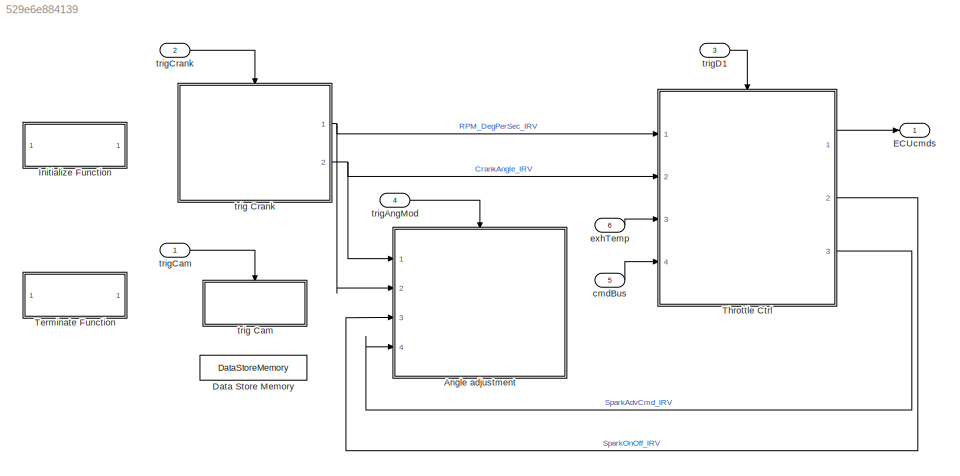
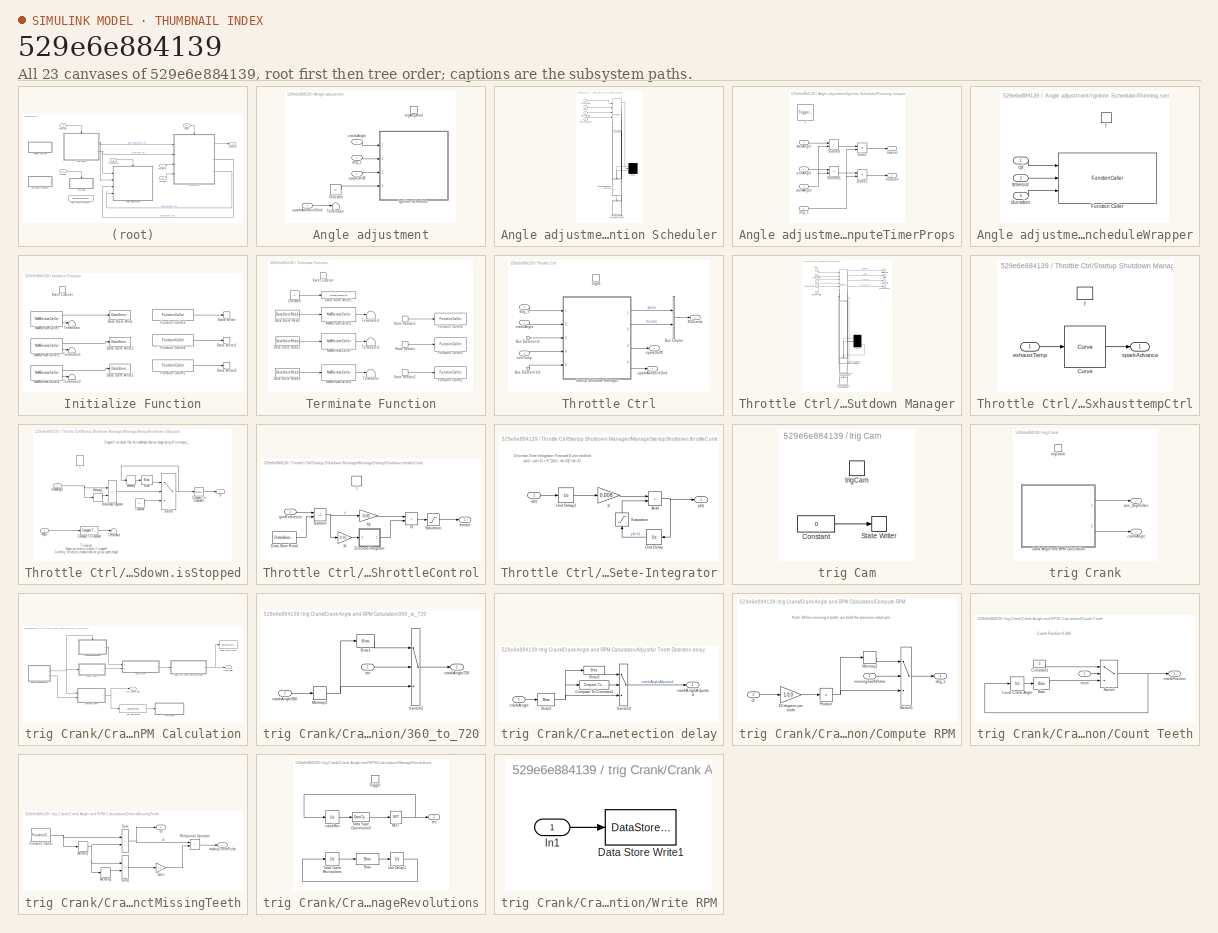
[diagram: thumbnail index - all 23 canvases of the model, root first then tree order]
MODEL slx_529e6e884139
KIND model
CONFIG AbsTol = auto
CONFIG EnableMultiTasking = on
CONFIG FixedStep = auto
CONFIG MaxStep = auto
CONFIG MinStep = auto
CONFIG PostLoadFcn = Variant = 2;
CONFIG RelTol = 1e-3
CONFIG SampleTimeConstraint = Unconstrained
CONFIG SolverName = FixedStepAuto
CONFIG StartTime = 0.0
CONFIG StopTime = 10.0
WORKSPACE source: mxarray member
WORKSPACE RPM: Simulink.Signal (value not decoded)
WORKSPACE cruiseRPM: Simulink.Parameter (value not decoded)
WORKSPACE enableCruiseControl: Simulink.Parameter (value not decoded)
WORKSPACE sparkAdvanceTable: Simulink.LookupTable (value not decoded)
BLOCK [SubSystem] Angle adjustment
  Ports = [4, 0, 0, 1]
  RequestExecContextInheritance = off
  TreatAsAtomicUnit = on
BLOCK [Constant] Angle adjustment/Constant
  Value = 30
BLOCK [SubSystem] Angle adjustment/Ignition Scheduler
  ErrorFcn = Stateflow.Translate.translate
  PermitHierarchicalResolution = ExplicitOnly
  Ports = [4]
  RequestExecContextInheritance = off
  SFBlockType = Chart
  TreatAsAtomicUnit = on
BLOCK [Demux] Angle adjustment/Ignition Scheduler/ Demux 
  Outputs = 2
  Ports = [1, 2]
BLOCK [S-Function] Angle adjustment/Ignition Scheduler/ SFunction 
  EnableBusSupport = on
  FunctionName = sf_sfun
  Parameters = CRANK_ANGLES,CRANK_ANGLE_MAX_IGN,dwellAngle
  PortCounts = [6 8]
  Ports = [6, 8]
  SFcnIsStateOwnerBlock = off
  SFunctionDeploymentMode = off
  Tag = Stateflow S-Function 2
BLOCK [SubSystem] Angle adjustment/Ignition Scheduler/Running.computeTimerProps
  Ports = [4, 2, 0, 1]
  PreDeleteFcn = Stateflow.SLINSF.SimulinkMan.removePreDeleteFcn
  RequestExecContextInheritance = off
  UndoDeleteFcn = Stateflow.SLINSF.SimulinkMan.restorePreDeleteFcn
BLOCK [Product] Angle adjustment/Ignition Scheduler/Running.computeTimerProps/Divide
  Inputs = */
  Ports = [2, 1]
BLOCK [Product] Angle adjustment/Ignition Scheduler/Running.computeTimerProps/Divide1
  Inputs = */
  Ports = [2, 1]
BLOCK [Sum] Angle adjustment/Ignition Scheduler/Running.computeTimerProps/Subtract
  IconShape = rectangular
  Inputs = +-
  Ports = [2, 1]
BLOCK [Sum] Angle adjustment/Ignition Scheduler/Running.computeTimerProps/Subtract1
  IconShape = rectangular
  Inputs = +-
  Ports = [2, 1]
BLOCK [Inport] Angle adjustment/Ignition Scheduler/Running.computeTimerProps/crankAngle
  OutDataTypeStr = double
  Port = 3
  PortDimensions = 1
  SignalType = real
  VarSizeSig = No
BLOCK [Inport] Angle adjustment/Ignition Scheduler/Running.computeTimerProps/deg_s
  OutDataTypeStr = double
  Port = 4
  PortDimensions = 1
  SignalType = real
  VarSizeSig = No
BLOCK [Outport] Angle adjustment/Ignition Scheduler/Running.computeTimerProps/duration
  Port = 2
  VectorParamsAs1DForOutWhenUnconnected = off
BLOCK [Inport] Angle adjustment/Ignition Scheduler/Running.computeTimerProps/endAngle
  OutDataTypeStr = double
  Port = 2
  PortDimensions = 1
  SignalType = real
  VarSizeSig = No
BLOCK [TriggerPort] Angle adjustment/Ignition Scheduler/Running.computeTimerProps/f
  CopyFcn = Stateflow.SLINSF.SimulinkMan.removeBlockPreDeleteFcn
  Ports = []
  PreDeleteFcn = Stateflow.SLINSF.SimulinkMan.unsafePredeleteFcn
  StatesWhenEnabling = held
  TriggerType = function-call
  VariantControl = (inherit)
BLOCK [Inport] Angle adjustment/Ignition Scheduler/Running.computeTimerProps/startAngle
  OutDataTypeStr = double
  PortDimensions = 1
  SignalType = real
  VarSizeSig = No
BLOCK [Outport] Angle adjustment/Ignition Scheduler/Running.computeTimerProps/timeout
  VectorParamsAs1DForOutWhenUnconnected = off
BLOCK [SubSystem] Angle adjustment/Ignition Scheduler/Running.setIgnitionScheduleWrapper
  Ports = [3, 0, 0, 1]
  PreDeleteFcn = Stateflow.SLINSF.SimulinkMan.removePreDeleteFcn
  RequestExecContextInheritance = off
  UndoDeleteFcn = Stateflow.SLINSF.SimulinkMan.restorePreDeleteFcn
BLOCK [FunctionCaller] Angle adjustment/Ignition Scheduler/Running.setIgnitionScheduleWrapper/Function Caller
  FunctionPrototype = setIgnitionSchedule(cyl,timeout,duration)
  InputArgumentSpecifications = 1,1,1
  OutputArgumentSpecifications = <Enter example>
  Ports = [3]
BLOCK [Inport] Angle adjustment/Ignition Scheduler/Running.setIgnitionScheduleWrapper/cyl
  OutDataTypeStr = double
  PortDimensions = 1
  SignalType = real
  VarSizeSig = No
BLOCK [Inport] Angle adjustment/Ignition Scheduler/Running.setIgnitionScheduleWrapper/duration
  OutDataTypeStr = double
  Port = 3
  PortDimensions = 1
  SignalType = real
  VarSizeSig = No
BLOCK [TriggerPort] Angle adjustment/Ignition Scheduler/Running.setIgnitionScheduleWrapper/f
  CopyFcn = Stateflow.SLINSF.SimulinkMan.removeBlockPreDeleteFcn
  Ports = []
  PreDeleteFcn = Stateflow.SLINSF.SimulinkMan.unsafePredeleteFcn
  StatesWhenEnabling = held
  TriggerType = function-call
  VariantControl = (inherit)
BLOCK [Inport] Angle adjustment/Ignition Scheduler/Running.setIgnitionScheduleWrapper/timeout
  OutDataTypeStr = double
  Port = 2
  PortDimensions = 1
  SignalType = real
  VarSizeSig = No
BLOCK [Inport] Angle adjustment/Ignition Scheduler/crankAngle
BLOCK [Inport] Angle adjustment/Ignition Scheduler/deg_s
  Port = 2
BLOCK [Inport] Angle adjustment/Ignition Scheduler/sparkAdvance
  Port = 4
BLOCK [Inport] Angle adjustment/Ignition Scheduler/sparkOnOff
  Port = 3
BLOCK [Terminator] Angle adjustment/Terminator
BLOCK [Inport] Angle adjustment/crankAngle
BLOCK [Inport] Angle adjustment/deg_s
  Port = 2
BLOCK [Inport] Angle adjustment/sparkAdvanceCmd
  Port = 4
BLOCK [Inport] Angle adjustment/sparkOnOff
  Port = 3
BLOCK [TriggerPort] Angle adjustment/trigAngMod
  FunctionName = scheduleIgnition
  FunctionVisibility = scoped
  Ports = []
  StatesWhenEnabling = held
  TriggerType = function-call
  VariantControl = (inherit)
BLOCK [DataStoreMemory] Data Store Memory
  DataLogging = on
  DataStoreName = RPM
  ReadBeforeWriteMsg = warning
  ShowAdditionalParam = off
  WriteAfterReadMsg = warning
  WriteAfterWriteMsg = warning
BLOCK [Outport] ECUcmds
  BusOutputAsStruct = on
  OutDataTypeStr = Bus: ecuCmdBus
  VectorParamsAs1DForOutWhenUnconnected = off
BLOCK [SubSystem] Initialize Function
  Ports = []
  RequestExecContextInheritance = off
  TreatAsAtomicUnit = on
BLOCK [DataStoreWrite] Initialize Function/Data Store Write
  Commented = on
  DataStoreName = crankRev
  Ports = [1]
BLOCK [DataStoreWrite] Initialize Function/Data Store Write1
  Commented = on
  DataStoreName = totalCrankRevs
  Ports = [1]
BLOCK [DataStoreWrite] Initialize Function/Data Store Write2
  Commented = on
  DataStoreName = LocalCrankAngle
  Ports = [1]
BLOCK [EventListener] Initialize Function/Event Listener
  DisableCoverage = on
  EventName = reset
BLOCK [FunctionCaller] Initialize Function/Function Caller1
  FunctionPrototype = y = readCrankAngle()
  InputArgumentSpecifications = <Enter example>
  OutputArgumentSpecifications = 0
  Ports = [0, 1]
BLOCK [FunctionCaller] Initialize Function/Function Caller3
  FunctionPrototype = y = readCrankRev()
  InputArgumentSpecifications = <Enter example>
  OutputArgumentSpecifications = false
  Ports = [0, 1]
BLOCK [FunctionCaller] Initialize Function/Function Caller4
  FunctionPrototype = y = readTotalRevs()
  InputArgumentSpecifications = <Enter example>
  OutputArgumentSpecifications = 0
  Ports = [0, 1]
BLOCK [Reference] Initialize Function/NvMServiceCaller  REF=autosarlibnvm/NvMServiceCaller
  Commented = on
  Ports = [0, 2]
  SourceBlock = autosarlibnvm/NvMServiceCaller
  SourceProductBaseCode = AS
  SourceType = NvMServiceCaller
BLOCK [Reference] Initialize Function/NvMServiceCaller1  REF=autosarlibnvm/NvMServiceCaller
  Commented = on
  Ports = [0, 2]
  SourceBlock = autosarlibnvm/NvMServiceCaller
  SourceProductBaseCode = AS
  SourceType = NvMServiceCaller
BLOCK [Reference] Initialize Function/NvMServiceCaller2  REF=autosarlibnvm/NvMServiceCaller
  Commented = on
  Ports = [0, 2]
  SourceBlock = autosarlibnvm/NvMServiceCaller
  SourceProductBaseCode = AS
  SourceType = NvMServiceCaller
BLOCK [StateWriter] Initialize Function/State Writer
  StateName = crankRev
  StateOwnerBlock = ../../trig Crank/Crank Angle and RPM Calculation/ManageRevolutions/crankRev
BLOCK [StateWriter] Initialize Function/State Writer1
  StateName = totalCrankRevs
  StateOwnerBlock = ../../trig Crank/Crank Angle and RPM Calculation/ManageRevolutions/Total Crank Revolutions
BLOCK [StateWriter] Initialize Function/State Writer2
  StateOwnerBlock = ../../trig Crank/Crank Angle and RPM Calculation/Count Teeth/Local Crank Angle
BLOCK [Terminator] Initialize Function/Terminator
  Commented = on
BLOCK [Terminator] Initialize Function/Terminator1
  Commented = on
BLOCK [Terminator] Initialize Function/Terminator2
  Commented = on
BLOCK [SubSystem] Terminate Function
  Ports = []
  RequestExecContextInheritance = off
  TreatAsAtomicUnit = on
BLOCK [Constant] Terminate Function/Constant
  Value = 0
BLOCK [DataStoreRead] Terminate Function/Data Store Read
  Commented = on
  DataStoreName = crankRev
  Ports = [0, 1]
BLOCK [DataStoreRead] Terminate Function/Data Store Read1
  Commented = on
  DataStoreName = totalCrankRevs
  Ports = [0, 1]
BLOCK [DataStoreRead] Terminate Function/Data Store Read2
  Commented = on
  DataStoreName = LocalCrankAngle
  Ports = [0, 1]
BLOCK [DataStoreWrite] Terminate Function/Data Store Write1
  DataStoreName = RPM
  Ports = [1]
BLOCK [EventListener] Terminate Function/Event Listener
  DisableCoverage = on
  EventName = reset
  EventType = Terminate
BLOCK [FunctionCaller] Terminate Function/Function Caller1
  FunctionPrototype = writeTotalRevs(u)
  InputArgumentSpecifications = 0
  OutputArgumentSpecifications = <Enter example>
  Ports = [1]
BLOCK [FunctionCaller] Terminate Function/Function Caller2
  FunctionPrototype = writeCrankAngle(u)
  InputArgumentSpecifications = 0
  OutputArgumentSpecifications = <Enter example>
  Ports = [1]
BLOCK [FunctionCaller] Terminate Function/Function Caller4
  FunctionPrototype = writeCrankRev(u)
  InputArgumentSpecifications = false
  OutputArgumentSpecifications = <Enter example>
  Ports = [1]
BLOCK [Reference] Terminate Function/NvMServiceCaller  REF=autosarlibnvm/NvMServiceCaller
  Commented = on
  Ports = [1, 1]
  SourceBlock = autosarlibnvm/NvMServiceCaller
  SourceProductBaseCode = AS
  SourceType = NvMServiceCaller
BLOCK [Reference] Terminate Function/NvMServiceCaller1  REF=autosarlibnvm/NvMServiceCaller
  Commented = on
  Ports = [1, 1]
  SourceBlock = autosarlibnvm/NvMServiceCaller
  SourceProductBaseCode = AS
  SourceType = NvMServiceCaller
BLOCK [Reference] Terminate Function/NvMServiceCaller2  REF=autosarlibnvm/NvMServiceCaller
  Commented = on
  Ports = [1, 1]
  SourceBlock = autosarlibnvm/NvMServiceCaller
  SourceProductBaseCode = AS
  SourceType = NvMServiceCaller
BLOCK [StateReader] Terminate Function/State Reader
  StateName = totalCrankRevs
  StateOwnerBlock = ../../trig Crank/Crank Angle and RPM Calculation/ManageRevolutions/Total Crank Revolutions
BLOCK [StateReader] Terminate Function/State Reader1
  StateName = crankRev
  StateOwnerBlock = ../../trig Crank/Crank Angle and RPM Calculation/ManageRevolutions/crankRev
BLOCK [StateReader] Terminate Function/State Reader2
  StateOwnerBlock = ../../trig Crank/Crank Angle and RPM Calculation/Count Teeth/Local Crank Angle
BLOCK [Terminator] Terminate Function/Terminator
  Commented = on
BLOCK [Terminator] Terminate Function/Terminator1
  Commented = on
BLOCK [Terminator] Terminate Function/Terminator2
  Commented = on
BLOCK [SubSystem] Throttle Ctrl
  Ports = [4, 3, 0, 1]
  RequestExecContextInheritance = off
  TreatAsAtomicUnit = on
BLOCK [BusCreator] Throttle Ctrl/Bus Creator
  DisplayOption = bar
  InheritFromInputs = on
  Inputs = 2
  NonVirtualBus = on
  OutDataTypeStr = Bus: ecuCmdBus
  Ports = [2, 1]
BLOCK [Inport] Throttle Ctrl/Bus Element In
  Port = 4
BLOCK [Inport] Throttle Ctrl/Bus Element In1
  Port = 4
BLOCK [Outport] Throttle Ctrl/ECUcmds
  VectorParamsAs1DForOutWhenUnconnected = off
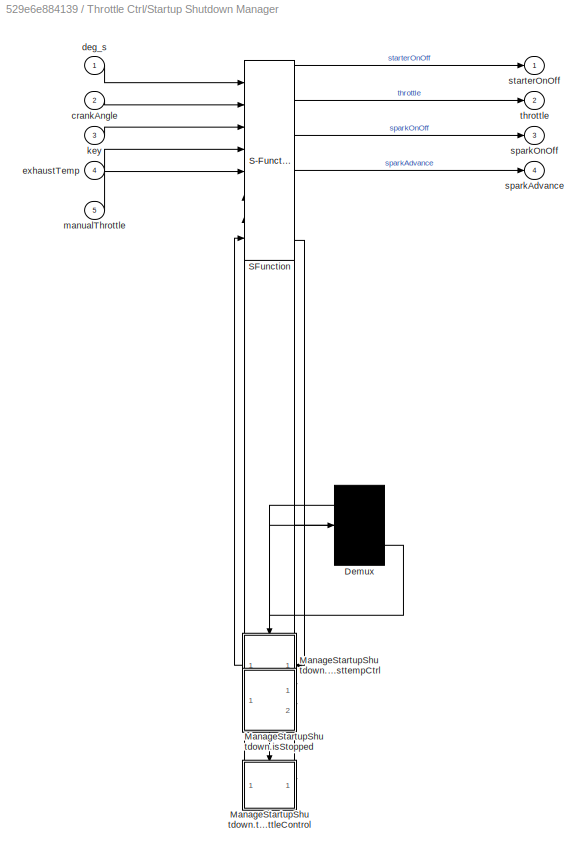
BLOCK [SubSystem] Throttle Ctrl/Startup Shutdown Manager
  ErrorFcn = Stateflow.Translate.translate
  PermitHierarchicalResolution = ExplicitOnly
  Ports = [5, 4]
  RequestExecContextInheritance = off
  SFBlockType = Chart
  TreatAsAtomicUnit = on
BLOCK [Demux] Throttle Ctrl/Startup Shutdown Manager/ Demux 
  Outputs = 3
  Ports = [1, 3]
BLOCK [S-Function] Throttle Ctrl/Startup Shutdown Manager/ SFunction 
  EnableBusSupport = on
  FunctionName = sf_sfun
  Parameters = CRANK_ANGLES,cruiseRPM,dwellAngle,enableCruiseControl,idleRPM
  PortCounts = [8 9]
  Ports = [8, 9]
  SFcnIsStateOwnerBlock = off
  SFunctionDeploymentMode = off
  Tag = Stateflow S-Function 1
BLOCK [SubSystem] Throttle Ctrl/Startup Shutdown Manager/ManageStartupShutdown.exhausttempCtrl
  Ports = [1, 1, 0, 1]
  PreDeleteFcn = Stateflow.SLINSF.SimulinkMan.removePreDeleteFcn
  RequestExecContextInheritance = off
  UndoDeleteFcn = Stateflow.SLINSF.SimulinkMan.restorePreDeleteFcn
BLOCK [Reference] Throttle Ctrl/Startup Shutdown Manager/ManageStartupShutdown.exhausttempCtrl/Curve  REF=autosarlibiflifx/Curve
  AttributesFormatString = %<TargetedRoutine>
  Ports = [1, 1]
  SourceBlock = autosarlibiflifx/Curve
  SourceProductBaseCode = AS
  SourceType = Curve
BLOCK [Inport] Throttle Ctrl/Startup Shutdown Manager/ManageStartupShutdown.exhausttempCtrl/exhaustTemp
  OutDataTypeStr = single
  PortDimensions = 1
  SignalType = real
  VarSizeSig = No
BLOCK [TriggerPort] Throttle Ctrl/Startup Shutdown Manager/ManageStartupShutdown.exhausttempCtrl/f
  CopyFcn = Stateflow.SLINSF.SimulinkMan.removeBlockPreDeleteFcn
  Ports = []
  PreDeleteFcn = Stateflow.SLINSF.SimulinkMan.unsafePredeleteFcn
  StatesWhenEnabling = held
  TriggerType = function-call
  VariantControl = (inherit)
BLOCK [Outport] Throttle Ctrl/Startup Shutdown Manager/ManageStartupShutdown.exhausttempCtrl/sparkAdvance
  VectorParamsAs1DForOutWhenUnconnected = off
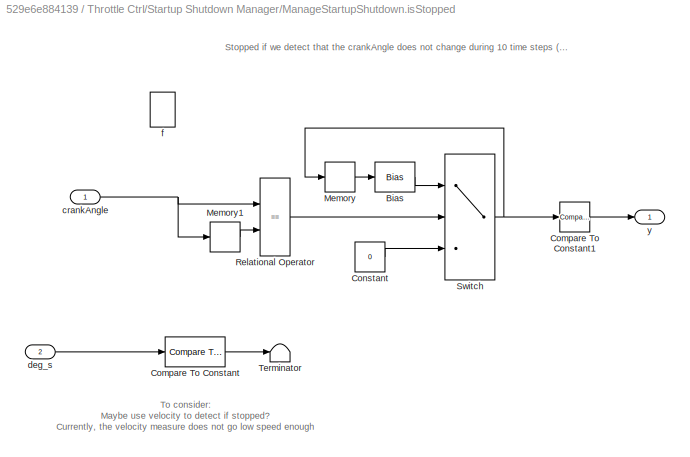
BLOCK [SubSystem] Throttle Ctrl/Startup Shutdown Manager/ManageStartupShutdown.isStopped
  Ports = [2, 1, 0, 1]
  PreDeleteFcn = Stateflow.SLINSF.SimulinkMan.removePreDeleteFcn
  RequestExecContextInheritance = off
  UndoDeleteFcn = Stateflow.SLINSF.SimulinkMan.restorePreDeleteFcn
BLOCK [Bias] Throttle Ctrl/Startup Shutdown Manager/ManageStartupShutdown.isStopped/Bias
  Bias = 1
  SaturateOnIntegerOverflow = off
BLOCK [Reference] Throttle Ctrl/Startup Shutdown Manager/ManageStartupShutdown.isStopped/Compare To Constant  REF=simulink/Logic and Bit
Operations/Compare
To Constant
  Ports = [1, 1]
  SourceBlock = simulink/Logic and Bit\nOperations/Compare\nTo Constant
  SourceProductBaseCode = SL
  SourceType = Compare To Constant
BLOCK [Reference] Throttle Ctrl/Startup Shutdown Manager/ManageStartupShutdown.isStopped/Compare To Constant1  REF=simulink/Logic and Bit
Operations/Compare
To Constant
  Ports = [1, 1]
  SourceBlock = simulink/Logic and Bit\nOperations/Compare\nTo Constant
  SourceProductBaseCode = SL
  SourceType = Compare To Constant
BLOCK [Constant] Throttle Ctrl/Startup Shutdown Manager/ManageStartupShutdown.isStopped/Constant
  Value = 0
BLOCK [Memory] Throttle Ctrl/Startup Shutdown Manager/ManageStartupShutdown.isStopped/Memory
  InheritSampleTime = on
BLOCK [Memory] Throttle Ctrl/Startup Shutdown Manager/ManageStartupShutdown.isStopped/Memory1
  InheritSampleTime = on
BLOCK [RelationalOperator] Throttle Ctrl/Startup Shutdown Manager/ManageStartupShutdown.isStopped/Relational Operator
  InputSameDT = off
  Operator = ==
  OutDataTypeStr = boolean
  Ports = [2, 1]
  RndMeth = Simplest
BLOCK [Switch] Throttle Ctrl/Startup Shutdown Manager/ManageStartupShutdown.isStopped/Switch
  Criteria = u2 ~= 0
  InputSameDT = off
  SaturateOnIntegerOverflow = off
BLOCK [Terminator] Throttle Ctrl/Startup Shutdown Manager/ManageStartupShutdown.isStopped/Terminator
BLOCK [Inport] Throttle Ctrl/Startup Shutdown Manager/ManageStartupShutdown.isStopped/crankAngle
  OutDataTypeStr = double
  PortDimensions = 1
  SignalType = real
  VarSizeSig = No
BLOCK [Inport] Throttle Ctrl/Startup Shutdown Manager/ManageStartupShutdown.isStopped/deg_s
  OutDataTypeStr = double
  Port = 2
  PortDimensions = 1
  SignalType = real
  VarSizeSig = No
BLOCK [TriggerPort] Throttle Ctrl/Startup Shutdown Manager/ManageStartupShutdown.isStopped/f
  CopyFcn = Stateflow.SLINSF.SimulinkMan.removeBlockPreDeleteFcn
  Ports = []
  PreDeleteFcn = Stateflow.SLINSF.SimulinkMan.unsafePredeleteFcn
  StatesWhenEnabling = held
  TriggerType = function-call
  VariantControl = (inherit)
BLOCK [Outport] Throttle Ctrl/Startup Shutdown Manager/ManageStartupShutdown.isStopped/y
  OutDataTypeStr = boolean
  PortDimensions = 1
  VarSizeSig = No
  VectorParamsAs1DForOutWhenUnconnected = off
BLOCK [SubSystem] Throttle Ctrl/Startup Shutdown Manager/ManageStartupShutdown.throttleControl
  Ports = [1, 1, 0, 1]
  PreDeleteFcn = Stateflow.SLINSF.SimulinkMan.removePreDeleteFcn
  RequestExecContextInheritance = off
  UndoDeleteFcn = Stateflow.SLINSF.SimulinkMan.restorePreDeleteFcn
BLOCK [DataStoreRead] Throttle Ctrl/Startup Shutdown Manager/ManageStartupShutdown.throttleControl/Data Store Read
  DataStoreName = RPM
  Ports = [0, 1]
BLOCK [SubSystem] Throttle Ctrl/Startup Shutdown Manager/ManageStartupShutdown.throttleControl/Discrete-Integrator
  Ports = [1, 1]
  RequestExecContextInheritance = off
BLOCK [Sum] Throttle Ctrl/Startup Shutdown Manager/ManageStartupShutdown.throttleControl/Discrete-Integrator/Add
  IconShape = rectangular
  Ports = [2, 1]
BLOCK [Gain] Throttle Ctrl/Startup Shutdown Manager/ManageStartupShutdown.throttleControl/Discrete-Integrator/K
  Gain = 0.008
BLOCK [Saturate] Throttle Ctrl/Startup Shutdown Manager/ManageStartupShutdown.throttleControl/Discrete-Integrator/Saturation
  LowerLimit = 0
  NameLocation = right
  UpperLimit = 90
BLOCK [UnitDelay] Throttle Ctrl/Startup Shutdown Manager/ManageStartupShutdown.throttleControl/Discrete-Integrator/Unit Delay
  HasFrameUpgradeWarning = on
  NameLocation = top
  SampleTime = -1
BLOCK [UnitDelay] Throttle Ctrl/Startup Shutdown Manager/ManageStartupShutdown.throttleControl/Discrete-Integrator/Unit Delay1
  HasFrameUpgradeWarning = on
  SampleTime = -1
BLOCK [Inport] Throttle Ctrl/Startup Shutdown Manager/ManageStartupShutdown.throttleControl/Discrete-Integrator/u(n)
BLOCK [Outport] Throttle Ctrl/Startup Shutdown Manager/ManageStartupShutdown.throttleControl/Discrete-Integrator/y(n)
  VectorParamsAs1DForOutWhenUnconnected = off
BLOCK [Gain] Throttle Ctrl/Startup Shutdown Manager/ManageStartupShutdown.throttleControl/Ki
  Gain = 0.05
BLOCK [Gain] Throttle Ctrl/Startup Shutdown Manager/ManageStartupShutdown.throttleControl/Kp
  Gain = 0.03
BLOCK [Sum] Throttle Ctrl/Startup Shutdown Manager/ManageStartupShutdown.throttleControl/PI
  IconShape = rectangular
  Ports = [2, 1]
BLOCK [Saturate] Throttle Ctrl/Startup Shutdown Manager/ManageStartupShutdown.throttleControl/Saturation
  LowerLimit = 0
  UpperLimit = 90
BLOCK [Sum] Throttle Ctrl/Startup Shutdown Manager/ManageStartupShutdown.throttleControl/Subtract
  IconShape = rectangular
  Inputs = +-
  Ports = [2, 1]
BLOCK [TriggerPort] Throttle Ctrl/Startup Shutdown Manager/ManageStartupShutdown.throttleControl/f
  CopyFcn = Stateflow.SLINSF.SimulinkMan.removeBlockPreDeleteFcn
  Ports = []
  PreDeleteFcn = Stateflow.SLINSF.SimulinkMan.unsafePredeleteFcn
  StatesWhenEnabling = held
  TriggerType = function-call
  VariantControl = (inherit)
BLOCK [Inport] Throttle Ctrl/Startup Shutdown Manager/ManageStartupShutdown.throttleControl/rpmReference
  OutDataTypeStr = double
  PortDimensions = 1
  SignalType = real
  VarSizeSig = No
BLOCK [Outport] Throttle Ctrl/Startup Shutdown Manager/ManageStartupShutdown.throttleControl/throttle
  VectorParamsAs1DForOutWhenUnconnected = off
BLOCK [Inport] Throttle Ctrl/Startup Shutdown Manager/crankAngle
  Port = 2
BLOCK [Inport] Throttle Ctrl/Startup Shutdown Manager/deg_s
BLOCK [Inport] Throttle Ctrl/Startup Shutdown Manager/exhaustTemp
  Port = 4
BLOCK [Inport] Throttle Ctrl/Startup Shutdown Manager/key
  Port = 3
BLOCK [Inport] Throttle Ctrl/Startup Shutdown Manager/manualThrottle
  Port = 5
BLOCK [Outport] Throttle Ctrl/Startup Shutdown Manager/sparkAdvance
  Port = 4
  VectorParamsAs1DForOutWhenUnconnected = off
BLOCK [Outport] Throttle Ctrl/Startup Shutdown Manager/sparkOnOff
  Port = 3
  VectorParamsAs1DForOutWhenUnconnected = off
BLOCK [Outport] Throttle Ctrl/Startup Shutdown Manager/starterOnOff
  VectorParamsAs1DForOutWhenUnconnected = off
BLOCK [Outport] Throttle Ctrl/Startup Shutdown Manager/throttle
  Port = 2
  VectorParamsAs1DForOutWhenUnconnected = off
BLOCK [Inport] Throttle Ctrl/crankAngle
  Port = 2
BLOCK [Inport] Throttle Ctrl/deg_s
BLOCK [Inport] Throttle Ctrl/exhTemp
  Port = 3
BLOCK [Outport] Throttle Ctrl/sparkAdvanceCmd
  Port = 3
  VectorParamsAs1DForOutWhenUnconnected = off
BLOCK [Outport] Throttle Ctrl/sparkOnOff
  Port = 2
  VectorParamsAs1DForOutWhenUnconnected = off
BLOCK [TriggerPort] Throttle Ctrl/trigD1
  FunctionName = scheduleIgnition
  FunctionVisibility = scoped
  Ports = []
  SampleTime = 0.008
  SampleTimeType = periodic
  StatesWhenEnabling = held
  TriggerType = function-call
  VariantControl = (inherit)
BLOCK [Inport] cmdBus
  BusOutputAsStruct = on
  OutDataTypeStr = Bus: opCmdBus
  Port = 5
BLOCK [Inport] exhTemp
  OutDataTypeStr = single
  Port = 6
BLOCK [SubSystem] trig Cam
  Ports = [0, 0, 0, 1]
  RequestExecContextInheritance = off
  TreatAsAtomicUnit = on
BLOCK [Constant] trig Cam/Constant
  OutDataTypeStr = boolean
  Value = 0
BLOCK [StateWriter] trig Cam/State Writer
  StateName = crankRev
  StateOwnerBlock = ../../trig Crank/Crank Angle and RPM Calculation/ManageRevolutions/crankRev
BLOCK [TriggerPort] trig Cam/trigCam
  FunctionName = trigCam
  FunctionVisibility = scoped
  Ports = []
  StatesWhenEnabling = held
  TriggerType = function-call
  VariantControl = (inherit)
BLOCK [SubSystem] trig Crank
  Ports = [0, 2, 0, 1]
  RequestExecContextInheritance = off
  TreatAsAtomicUnit = on
BLOCK [SubSystem] trig Crank/Crank Angle and RPM Calculation
  Ports = [0, 2]
  RequestExecContextInheritance = off
BLOCK [SubSystem] trig Crank/Crank Angle and RPM Calculation/360_to_720
  Ports = [2, 1]
  RequestExecContextInheritance = off
BLOCK [Bias] trig Crank/Crank Angle and RPM Calculation/360_to_720/Bias1
  Bias = 360
  SaturateOnIntegerOverflow = off
BLOCK [Memory] trig Crank/Crank Angle and RPM Calculation/360_to_720/Memory3
  Commented = through
  InheritSampleTime = on
  StateName = CrankAngle360
BLOCK [Switch] trig Crank/Crank Angle and RPM Calculation/360_to_720/Switch2
  Criteria = u2 ~= 0
  InputSameDT = off
  SaturateOnIntegerOverflow = off
  Threshold = 34
BLOCK [Inport] trig Crank/Crank Angle and RPM Calculation/360_to_720/crankAngle360
  Port = 2
BLOCK [Outport] trig Crank/Crank Angle and RPM Calculation/360_to_720/crankAngle720
  VectorParamsAs1DForOutWhenUnconnected = off
BLOCK [Inport] trig Crank/Crank Angle and RPM Calculation/360_to_720/rev
BLOCK [SubSystem] trig Crank/Crank Angle and RPM Calculation/Adjust for Teeth Detection delay
  Ports = [1, 1]
  RequestExecContextInheritance = off
BLOCK [Bias] trig Crank/Crank Angle and RPM Calculation/Adjust for Teeth Detection delay/Bias2
  Bias = 10
  Commented = through
  SaturateOnIntegerOverflow = off
BLOCK [Bias] trig Crank/Crank Angle and RPM Calculation/Adjust for Teeth Detection delay/Bias3
  Bias = -710
  NameLocation = top
  SaturateOnIntegerOverflow = off
BLOCK [Reference] trig Crank/Crank Angle and RPM Calculation/Adjust for Teeth Detection delay/Compare To Constant1  REF=simulink/Logic and Bit
Operations/Compare
To Constant
  Ports = [1, 1]
  SourceBlock = simulink/Logic and Bit\nOperations/Compare\nTo Constant
  SourceProductBaseCode = SL
  SourceType = Compare To Constant
BLOCK [Switch] trig Crank/Crank Angle and RPM Calculation/Adjust for Teeth Detection delay/Switch3
  Criteria = u2 ~= 0
  InputSameDT = off
  SaturateOnIntegerOverflow = off
  Threshold = 34
BLOCK [Inport] trig Crank/Crank Angle and RPM Calculation/Adjust for Teeth Detection delay/crankAngle
BLOCK [Outport] trig Crank/Crank Angle and RPM Calculation/Adjust for Teeth Detection delay/crankAngleAdjusted
  VectorParamsAs1DForOutWhenUnconnected = off
BLOCK [SubSystem] trig Crank/Crank Angle and RPM Calculation/Compute RPM
  Ports = [2, 1]
  RequestExecContextInheritance = off
BLOCK [Gain] trig Crank/Crank Angle and RPM Calculation/Compute RPM/10 degrees per tooth
  Gain = 1/10
BLOCK [Memory] trig Crank/Crank Angle and RPM Calculation/Compute RPM/Memory2
  InheritSampleTime = on
  StateName = DegPerSec
BLOCK [Product] trig Crank/Crank Angle and RPM Calculation/Compute RPM/Product
  Inputs = /
  Ports = [1, 1]
BLOCK [Switch] trig Crank/Crank Angle and RPM Calculation/Compute RPM/Switch1
  Criteria = u2 ~= 0
  InputSameDT = off
  SaturateOnIntegerOverflow = off
  Threshold = 34
BLOCK [Outport] trig Crank/Crank Angle and RPM Calculation/Compute RPM/deg_s
  Unit = deg/sec
  VectorParamsAs1DForOutWhenUnconnected = off
BLOCK [Inport] trig Crank/Crank Angle and RPM Calculation/Compute RPM/dt
  Port = 2
  Unit = sec
BLOCK [Inport] trig Crank/Crank Angle and RPM Calculation/Compute RPM/missingTeethPulse
BLOCK [SubSystem] trig Crank/Crank Angle and RPM Calculation/Count Teeth
  Ports = [1, 1]
  RequestExecContextInheritance = off
BLOCK [Bias] trig Crank/Crank Angle and RPM Calculation/Count Teeth/Bias
  Bias = 10
  SaturateOnIntegerOverflow = off
BLOCK [Constant] trig Crank/Crank Angle and RPM Calculation/Count Teeth/Constant1
  Value = 0
BLOCK [UnitDelay] trig Crank/Crank Angle and RPM Calculation/Count Teeth/Local Crank Angle
  HasFrameUpgradeWarning = on
  SampleTime = -1
BLOCK [Switch] trig Crank/Crank Angle and RPM Calculation/Count Teeth/Switch
  Criteria = u2 ~= 0
  InputSameDT = off
  SaturateOnIntegerOverflow = off
  Threshold = 34
BLOCK [Outport] trig Crank/Crank Angle and RPM Calculation/Count Teeth/crankPosition
  Unit = deg
  VectorParamsAs1DForOutWhenUnconnected = off
BLOCK [Inport] trig Crank/Crank Angle and RPM Calculation/Count Teeth/reset
BLOCK [DataStoreWrite] trig Crank/Crank Angle and RPM Calculation/Data Store Write
  DataStoreName = fullCrankAngle
  Ports = [1]
BLOCK [SubSystem] trig Crank/Crank Angle and RPM Calculation/DetectMissingTeeth
  Ports = [0, 2]
  RequestExecContextInheritance = off
BLOCK [FunctionCaller] trig Crank/Crank Angle and RPM Calculation/DetectMissingTeeth/Function Caller
  FunctionPrototype = y = getTime()
  InputArgumentSpecifications = <Enter example>
  OutputArgumentSpecifications = 1
  Ports = [0, 1]
BLOCK [Gain] trig Crank/Crank Angle and RPM Calculation/DetectMissingTeeth/Gain
  Gain = 1.5
BLOCK [Memory] trig Crank/Crank Angle and RPM Calculation/DetectMissingTeeth/Memory
  InheritSampleTime = on
  StateName = TimeDelay1
BLOCK [Memory] trig Crank/Crank Angle and RPM Calculation/DetectMissingTeeth/Memory1
  InheritSampleTime = on
  StateName = TimeDelay2
BLOCK [RelationalOperator] trig Crank/Crank Angle and RPM Calculation/DetectMissingTeeth/Relational Operator
  InputSameDT = off
  Operator = >
  OutDataTypeStr = boolean
  Ports = [2, 1]
  RndMeth = Simplest
BLOCK [Sum] trig Crank/Crank Angle and RPM Calculation/DetectMissingTeeth/Sum
  IconShape = rectangular
  Inputs = +-
  Ports = [2, 1]
BLOCK [Sum] trig Crank/Crank Angle and RPM Calculation/DetectMissingTeeth/Sum1
  IconShape = rectangular
  Inputs = +-
  Ports = [2, 1]
BLOCK [Outport] trig Crank/Crank Angle and RPM Calculation/DetectMissingTeeth/dt
  Port = 2
  Unit = sec
  VectorParamsAs1DForOutWhenUnconnected = off
BLOCK [Outport] trig Crank/Crank Angle and RPM Calculation/DetectMissingTeeth/missingTeethPulse
  VectorParamsAs1DForOutWhenUnconnected = off
BLOCK [SubSystem] trig Crank/Crank Angle and RPM Calculation/ManageRevolutions
  Ports = [0, 1, 0, 1]
  RequestExecContextInheritance = off
BLOCK [Bias] trig Crank/Crank Angle and RPM Calculation/ManageRevolutions/Bias
  Bias = 1
  SaturateOnIntegerOverflow = off
BLOCK [DataTypeConversion] trig Crank/Crank Angle and RPM Calculation/ManageRevolutions/Data Type Conversion2
  OutDataTypeStr = boolean
  RndMeth = Floor
  SaturateOnIntegerOverflow = off
BLOCK [Logic] trig Crank/Crank Angle and RPM Calculation/ManageRevolutions/NOT
  AllPortsSameDT = off
  IconShape = distinctive
  Operator = NOT
  OutDataTypeStr = boolean
  Ports = [1, 1]
BLOCK [UnitDelay] trig Crank/Crank Angle and RPM Calculation/ManageRevolutions/Total Crank Revolutions
  HasFrameUpgradeWarning = on
  SampleTime = -1
  StateName = totalCrankRevs
BLOCK [TriggerPort] trig Crank/Crank Angle and RPM Calculation/ManageRevolutions/Trigger
  PortDimensions = 1
  Ports = []
  StatesWhenEnabling = held
  VariantControl = Variant
BLOCK [UnitDelay] trig Crank/Crank Angle and RPM Calculation/ManageRevolutions/Unit Delay1
  HasFrameUpgradeWarning = on
  SampleTime = -1
BLOCK [UnitDelay] trig Crank/Crank Angle and RPM Calculation/ManageRevolutions/crankRev
  HasFrameUpgradeWarning = on
  InitialCondition = false
  SampleTime = -1
  StateName = crankRev
BLOCK [Outport] trig Crank/Crank Angle and RPM Calculation/ManageRevolutions/rev
  VectorParamsAs1DForOutWhenUnconnected = off
BLOCK [UnitConversion] trig Crank/Crank Angle and RPM Calculation/Unit Conversion
BLOCK [SubSystem] trig Crank/Crank Angle and RPM Calculation/Write RPM
  Ports = [1]
  RequestExecContextInheritance = off
BLOCK [DataStoreWrite] trig Crank/Crank Angle and RPM Calculation/Write RPM/Data Store Write1
  DataStoreName = RPM
  Ports = [1]
BLOCK [Inport] trig Crank/Crank Angle and RPM Calculation/Write RPM/In1
  Unit = rpm
BLOCK [Outport] trig Crank/Crank Angle and RPM Calculation/crankAngle
  Port = 2
  VectorParamsAs1DForOutWhenUnconnected = off
BLOCK [Outport] trig Crank/Crank Angle and RPM Calculation/rpm_DegPerSec
  VectorParamsAs1DForOutWhenUnconnected = off
BLOCK [Outport] trig Crank/crankAngle
  Port = 2
BLOCK [Outport] trig Crank/rpm_DegPerSec
BLOCK [TriggerPort] trig Crank/trigCrank
  FunctionName = trigCrank
  FunctionVisibility = scoped
  Ports = []
  StatesWhenEnabling = held
  TriggerType = function-call
  VariantControl = (inherit)
BLOCK [Inport] trigAngMod
  OutputFunctionCall = on
  Port = 4
BLOCK [Inport] trigCam
  OutputFunctionCall = on
BLOCK [Inport] trigCrank
  OutputFunctionCall = on
  Port = 2
BLOCK [Inport] trigD1
  OutputFunctionCall = on
  Port = 3
  SampleTime = 0.008
ANNOTATION Throttle Ctrl/Startup Shutdown Manager/ManageStartupShutdown.isStopped: To consider: Maybe use velocity to detect if stopped? Currently, the velocity measure does not go low speed enough
ANNOTATION Throttle Ctrl/Startup Shutdown Manager/ManageStartupShutdown.isStopped: Stopped if we detect that the crankAngle does not change during 10 time steps (0.08 sec)
ANNOTATION Throttle Ctrl/Startup Shutdown Manager/ManageStartupShutdown.throttleControl/Discrete-Integrator: Discrete-Time Integrator: Forward Euler method y(n) = y(n-1) + K*[t(n) - t(n-1)]*u(n-1)
ANNOTATION trig Crank/Crank Angle and RPM Calculation/Compute RPM: Note: When missing a teeth, we hold the previous valid rpm
ANNOTATION trig Crank/Crank Angle and RPM Calculation/Count Teeth: Crank Position 0-360
LINE Angle adjustment/Constant:1 -> Angle adjustment/Ignition Scheduler:4
LINE Angle adjustment/crankAngle:1 -> Angle adjustment/Ignition Scheduler:1
LINE Angle adjustment/deg_s:1 -> Angle adjustment/Ignition Scheduler:2
LINE Angle adjustment/sparkAdvanceCmd:1 -> Angle adjustment/Terminator:1
LINE Angle adjustment/sparkOnOff:1 -> Angle adjustment/Ignition Scheduler:3
LINE Initialize Function/Function Caller1:1 -> Initialize Function/State Writer2:1
LINE Initialize Function/Function Caller3:1 -> Initialize Function/State Writer:1
LINE Initialize Function/Function Caller4:1 -> Initialize Function/State Writer1:1
LINE Initialize Function/NvMServiceCaller1:1 -> Initialize Function/Data Store Write1:1
LINE Initialize Function/NvMServiceCaller1:2 -> Initialize Function/Terminator1:1
LINE Initialize Function/NvMServiceCaller2:1 -> Initialize Function/Data Store Write2:1
LINE Initialize Function/NvMServiceCaller2:2 -> Initialize Function/Terminator2:1
LINE Initialize Function/NvMServiceCaller:1 -> Initialize Function/Data Store Write:1
LINE Initialize Function/NvMServiceCaller:2 -> Initialize Function/Terminator:1
LINE Terminate Function/Constant:1 -> Terminate Function/Data Store Write1:1
LINE Terminate Function/Data Store Read1:1 -> Terminate Function/NvMServiceCaller:1
LINE Terminate Function/Data Store Read2:1 -> Terminate Function/NvMServiceCaller1:1
LINE Terminate Function/Data Store Read:1 -> Terminate Function/NvMServiceCaller2:1
LINE Terminate Function/NvMServiceCaller1:1 -> Terminate Function/Terminator:1
LINE Terminate Function/NvMServiceCaller2:1 -> Terminate Function/Terminator2:1
LINE Terminate Function/NvMServiceCaller:1 -> Terminate Function/Terminator1:1
LINE Terminate Function/State Reader1:1 -> Terminate Function/Function Caller4:1
LINE Terminate Function/State Reader2:1 -> Terminate Function/Function Caller2:1
LINE Terminate Function/State Reader:1 -> Terminate Function/Function Caller1:1
LINE Throttle Ctrl/Bus Creator:1 -> Throttle Ctrl/ECUcmds:1
LINE Throttle Ctrl/Bus Element In1:1 -> Throttle Ctrl/Startup Shutdown Manager:5
LINE Throttle Ctrl/Bus Element In:1 -> Throttle Ctrl/Startup Shutdown Manager:3
LINE Throttle Ctrl/Startup Shutdown Manager:1 -> Throttle Ctrl/Bus Creator:1
LINE Throttle Ctrl/Startup Shutdown Manager:2 -> Throttle Ctrl/Bus Creator:2
LINE Throttle Ctrl/Startup Shutdown Manager:3 -> Throttle Ctrl/sparkOnOff:1
LINE Throttle Ctrl/Startup Shutdown Manager:4 -> Throttle Ctrl/sparkAdvanceCmd:1
LINE Throttle Ctrl/crankAngle:1 -> Throttle Ctrl/Startup Shutdown Manager:2
LINE Throttle Ctrl/deg_s:1 -> Throttle Ctrl/Startup Shutdown Manager:1
LINE Throttle Ctrl/exhTemp:1 -> Throttle Ctrl/Startup Shutdown Manager:4
LINE Throttle Ctrl:1 -> ECUcmds:1
LINE Throttle Ctrl:2 -> Angle adjustment:3
LINE Throttle Ctrl:3 -> Angle adjustment:4
LINE cmdBus:1 -> Throttle Ctrl:4
LINE exhTemp:1 -> Throttle Ctrl:3
LINE trig Cam/Constant:1 -> trig Cam/State Writer:1
LINE trig Crank/Crank Angle and RPM Calculation/360_to_720/Bias1:1 -> trig Crank/Crank Angle and RPM Calculation/360_to_720/Switch2:1
NET trig Crank/Crank Angle and RPM Calculation/360_to_720/Memory3:1 -> trig Crank/Crank Angle and RPM Calculation/360_to_720/Bias1:1, trig Crank/Crank Angle and RPM Calculation/360_to_720/Switch2:3
LINE trig Crank/Crank Angle and RPM Calculation/360_to_720/Switch2:1 -> trig Crank/Crank Angle and RPM Calculation/360_to_720/crankAngle720:1
LINE trig Crank/Crank Angle and RPM Calculation/360_to_720/crankAngle360:1 -> trig Crank/Crank Angle and RPM Calculation/360_to_720/Memory3:1
LINE trig Crank/Crank Angle and RPM Calculation/360_to_720/rev:1 -> trig Crank/Crank Angle and RPM Calculation/360_to_720/Switch2:2
LINE trig Crank/Crank Angle and RPM Calculation/360_to_720:1 -> trig Crank/Crank Angle and RPM Calculation/Adjust for Teeth Detection delay:1
NET trig Crank/Crank Angle and RPM Calculation/Adjust for Teeth Detection delay/Bias2:1 -> trig Crank/Crank Angle and RPM Calculation/Adjust for Teeth Detection delay/Bias3:1, trig Crank/Crank Angle and RPM Calculation/Adjust for Teeth Detection delay/Compare To Constant1:1, trig Crank/Crank Angle and RPM Calculation/Adjust for Teeth Detection delay/Switch3:3
LINE trig Crank/Crank Angle and RPM Calculation/Adjust for Teeth Detection delay/Bias3:1 -> trig Crank/Crank Angle and RPM Calculation/Adjust for Teeth Detection delay/Switch3:1
LINE trig Crank/Crank Angle and RPM Calculation/Adjust for Teeth Detection delay/Compare To Constant1:1 -> trig Crank/Crank Angle and RPM Calculation/Adjust for Teeth Detection delay/Switch3:2
LINE trig Crank/Crank Angle and RPM Calculation/Adjust for Teeth Detection delay/Switch3:1 -> trig Crank/Crank Angle and RPM Calculation/Adjust for Teeth Detection delay/crankAngleAdjusted:1
LINE trig Crank/Crank Angle and RPM Calculation/Adjust for Teeth Detection delay/crankAngle:1 -> trig Crank/Crank Angle and RPM Calculation/Adjust for Teeth Detection delay/Bias2:1
NET trig Crank/Crank Angle and RPM Calculation/Adjust for Teeth Detection delay:1 -> trig Crank/Crank Angle and RPM Calculation/Data Store Write:1, trig Crank/Crank Angle and RPM Calculation/crankAngle:1
LINE trig Crank/Crank Angle and RPM Calculation/Compute RPM/10 degrees per tooth:1 -> trig Crank/Crank Angle and RPM Calculation/Compute RPM/Product:1
LINE trig Crank/Crank Angle and RPM Calculation/Compute RPM/Memory2:1 -> trig Crank/Crank Angle and RPM Calculation/Compute RPM/Switch1:1
NET trig Crank/Crank Angle and RPM Calculation/Compute RPM/Product:1 -> trig Crank/Crank Angle and RPM Calculation/Compute RPM/Memory2:1, trig Crank/Crank Angle and RPM Calculation/Compute RPM/Switch1:3
LINE trig Crank/Crank Angle and RPM Calculation/Compute RPM/Switch1:1 -> trig Crank/Crank Angle and RPM Calculation/Compute RPM/deg_s:1
LINE trig Crank/Crank Angle and RPM Calculation/Compute RPM/dt:1 -> trig Crank/Crank Angle and RPM Calculation/Compute RPM/10 degrees per tooth:1
LINE trig Crank/Crank Angle and RPM Calculation/Compute RPM/missingTeethPulse:1 -> trig Crank/Crank Angle and RPM Calculation/Compute RPM/Switch1:2
NET trig Crank/Crank Angle and RPM Calculation/Compute RPM:1 -> trig Crank/Crank Angle and RPM Calculation/Unit Conversion:1, trig Crank/Crank Angle and RPM Calculation/rpm_DegPerSec:1
LINE trig Crank/Crank Angle and RPM Calculation/Count Teeth/Bias:1 -> trig Crank/Crank Angle and RPM Calculation/Count Teeth/Switch:3
LINE trig Crank/Crank Angle and RPM Calculation/Count Teeth/Constant1:1 -> trig Crank/Crank Angle and RPM Calculation/Count Teeth/Switch:1
LINE trig Crank/Crank Angle and RPM Calculation/Count Teeth/Local Crank Angle:1 -> trig Crank/Crank Angle and RPM Calculation/Count Teeth/Bias:1
NET trig Crank/Crank Angle and RPM Calculation/Count Teeth/Switch:1 -> trig Crank/Crank Angle and RPM Calculation/Count Teeth/Local Crank Angle:1, trig Crank/Crank Angle and RPM Calculation/Count Teeth/crankPosition:1
LINE trig Crank/Crank Angle and RPM Calculation/Count Teeth/reset:1 -> trig Crank/Crank Angle and RPM Calculation/Count Teeth/Switch:2
LINE trig Crank/Crank Angle and RPM Calculation/Count Teeth:1 -> trig Crank/Crank Angle and RPM Calculation/360_to_720:2
NET trig Crank/Crank Angle and RPM Calculation/DetectMissingTeeth/Function Caller:1 -> trig Crank/Crank Angle and RPM Calculation/DetectMissingTeeth/Memory:1, trig Crank/Crank Angle and RPM Calculation/DetectMissingTeeth/Sum:1
LINE trig Crank/Crank Angle and RPM Calculation/DetectMissingTeeth/Gain:1 -> trig Crank/Crank Angle and RPM Calculation/DetectMissingTeeth/Relational Operator:2
LINE trig Crank/Crank Angle and RPM Calculation/DetectMissingTeeth/Memory1:1 -> trig Crank/Crank Angle and RPM Calculation/DetectMissingTeeth/Sum1:2
NET trig Crank/Crank Angle and RPM Calculation/DetectMissingTeeth/Memory:1 -> trig Crank/Crank Angle and RPM Calculation/DetectMissingTeeth/Memory1:1, trig Crank/Crank Angle and RPM Calculation/DetectMissingTeeth/Sum1:1, trig Crank/Crank Angle and RPM Calculation/DetectMissingTeeth/Sum:2
LINE trig Crank/Crank Angle and RPM Calculation/DetectMissingTeeth/Relational Operator:1 -> trig Crank/Crank Angle and RPM Calculation/DetectMissingTeeth/missingTeethPulse:1
LINE trig Crank/Crank Angle and RPM Calculation/DetectMissingTeeth/Sum1:1 -> trig Crank/Crank Angle and RPM Calculation/DetectMissingTeeth/Gain:1
NET trig Crank/Crank Angle and RPM Calculation/DetectMissingTeeth/Sum:1 -> trig Crank/Crank Angle and RPM Calculation/DetectMissingTeeth/Relational Operator:1, trig Crank/Crank Angle and RPM Calculation/DetectMissingTeeth/dt:1
NET trig Crank/Crank Angle and RPM Calculation/DetectMissingTeeth:1 -> trig Crank/Crank Angle and RPM Calculation/Compute RPM:1, trig Crank/Crank Angle and RPM Calculation/Count Teeth:1, trig Crank/Crank Angle and RPM Calculation/ManageRevolutions:trigger
LINE trig Crank/Crank Angle and RPM Calculation/DetectMissingTeeth:2 -> trig Crank/Crank Angle and RPM Calculation/Compute RPM:2
LINE trig Crank/Crank Angle and RPM Calculation/ManageRevolutions/Bias:1 -> trig Crank/Crank Angle and RPM Calculation/ManageRevolutions/Unit Delay1:1
LINE trig Crank/Crank Angle and RPM Calculation/ManageRevolutions/Data Type Conversion2:1 -> trig Crank/Crank Angle and RPM Calculation/ManageRevolutions/NOT:1
NET trig Crank/Crank Angle and RPM Calculation/ManageRevolutions/NOT:1 -> trig Crank/Crank Angle and RPM Calculation/ManageRevolutions/crankRev:1, trig Crank/Crank Angle and RPM Calculation/ManageRevolutions/rev:1
LINE trig Crank/Crank Angle and RPM Calculation/ManageRevolutions/Total Crank Revolutions:1 -> trig Crank/Crank Angle and RPM Calculation/ManageRevolutions/Bias:1
LINE trig Crank/Crank Angle and RPM Calculation/ManageRevolutions/Unit Delay1:1 -> trig Crank/Crank Angle and RPM Calculation/ManageRevolutions/Total Crank Revolutions:1
LINE trig Crank/Crank Angle and RPM Calculation/ManageRevolutions/crankRev:1 -> trig Crank/Crank Angle and RPM Calculation/ManageRevolutions/Data Type Conversion2:1
LINE trig Crank/Crank Angle and RPM Calculation/ManageRevolutions:1 -> trig Crank/Crank Angle and RPM Calculation/360_to_720:1
LINE trig Crank/Crank Angle and RPM Calculation/Unit Conversion:1 -> trig Crank/Crank Angle and RPM Calculation/Write RPM:1
LINE trig Crank/Crank Angle and RPM Calculation/Write RPM/In1:1 -> trig Crank/Crank Angle and RPM Calculation/Write RPM/Data Store Write1:1
LINE trig Crank/Crank Angle and RPM Calculation:1 -> trig Crank/rpm_DegPerSec:1
LINE trig Crank/Crank Angle and RPM Calculation:2 -> trig Crank/crankAngle:1
NET trig Crank:1 -> Angle adjustment:2, Throttle Ctrl:1
NET trig Crank:2 -> Angle adjustment:1, Throttle Ctrl:2
LINE trigAngMod:1 -> Angle adjustment:trigger
LINE trigCam:1 -> trig Cam:trigger
LINE trigCrank:1 -> trig Crank:trigger
LINE trigD1:1 -> Throttle Ctrl:trigger
note: NET lines group one-source signal fan-out (src -> all destinations, sorted); 1:1 wires keep LINE
CHART Throttle Ctrl/Startup Shutdown Manager states=11 transitions=10
  STATE_LABEL 'ManageStartupShutdown'
  STATE_LABEL 'Off\nentry: starterOnOff = false;\n sparkOnOff = false;\n throttle = 0;'
  STATE_LABEL 'Running'
  STATE_LABEL 'StarterOn\nentry: starterOnOff = true;'
  STATE_LABEL 'SparkOn\nentry: sparkOnOff = true;\n throttle = 90;\n'
  STATE_LABEL 'StarterAndEngine\n'
  STATE_LABEL 'StarterOff\nentry:\nstarterOnOff = false;\nentry, during:\nif(enableCruiseControl)\n    throttle = throttleControl(cruiseRPM);\nelse\n    throttle = manualThrottle+throttleControl(idleRPM);\nend\nsparkAdvance = exhausttempCtrl(exhaustTemp);\n'  <repeated x3 — deduplicated; at blocks: Startup Shutdown Manager>
  STATE_LABEL 'after(0.5,sec)'
  STATE_LABEL '[deg_s>10000] % over 1600 RPM'
  STATE_LABEL 'WaitingForZeroSped\n\n'
  STATE_LABEL 'throttle = throttleControl(rpmReference)'
  STATE_LABEL 'y = isStopped(crankAngle,deg_s)'
  STATE_LABEL 'sparkAdvance = exhausttempCtrl(exhaustTemp)'
  STATE_LABEL '[isStopped(crankAngle,deg_s)] \n{isECUPowered = false;}'
  STATE_LABEL '[key == true]'
  STATE_LABEL '[key == false] \n{throttle = 0;sparkOnOff=false}'
  STATE_LABEL 'Off\nentry: starterOnOff = false;\n sparkOnOff = false;\n throttle = 0;'
  STATE_LABEL 'Running'
  STATE_LABEL 'StarterOn\nentry: starterOnOff = true;'
  STATE_LABEL 'SparkOn\nentry: sparkOnOff = true;\n throttle = 90;\n'
  STATE_LABEL 'StarterAndEngine\n'
  STATE_LABEL 'after(0.5,sec)'
  STATE_LABEL '[deg_s>10000] % over 1600 RPM'
  STATE_LABEL 'StarterOn\nentry: starterOnOff = true;'
  STATE_LABEL 'SparkOn\nentry: sparkOnOff = true;\n throttle = 90;\n'
  STATE_LABEL 'StarterAndEngine\n'
  STATE_LABEL 'WaitingForZeroSped\n\n'
  STATE_LABEL 'throttle = throttleControl(rpmReference)'
  STATE_LABEL 'y = isStopped(crankAngle,deg_s)'
  STATE_LABEL 'sparkAdvance = exhausttempCtrl(exhaustTemp)'
CHART Angle adjustment/Ignition Scheduler states=14 transitions=27
  STATE_LABEL 'Wait'
  STATE_LABEL 'Running\n'
  STATE_LABEL '[timeout, duration] = computeTimerProps(startAngle, endAngle, crankAngle, deg_s)'
  STATE_LABEL 'setIgnitionScheduleWrapper(cyl,timeout,duration)'
  STATE_LABEL 'WaitNextQuadrant'
  STATE_LABEL 'CRANK_ANGLES = [720 180 360 540];'
  STATE_LABEL 'startAt1\nen:  endAngle = CRANK_ANGLES(1) - sparkAdvance;\n  startAngle = endAngle-dwellAngle;'
  STATE_LABEL 'IgnitionCyl1\nentry: [timeout, duration] = computeTimerProps(startAngle, endAngle, crankAngle, deg_s);\n setIgnitionScheduleWrapper(1,timeout,duration);\n endAngle = CRANK_ANGLES(2) - sparkAdvance;\n startAngle = endAngle-dwellAngle;'
  STATE_LABEL 'IgnitionCyl2\nentry: [timeout, duration] = computeTimerProps(startAngle, endAngle, crankAngle, deg_s);\n setIgnitionScheduleWrapper(2,timeout,duration);\n endAngle = CRANK_ANGLES(3) - sparkAdvance;\n startAngle = endAngle-dwellAngle;'
  STATE_LABEL 'startAt2\nen:  endAngle = CRANK_ANGLES(2) - sparkAdvance;\n  startAngle = endAngle-dwellAngle;'
  STATE_LABEL 'IgnitionCyl3\nentry: [timeout, duration] = computeTimerProps(startAngle, endAngle, crankAngle, deg_s);\n setIgnitionScheduleWrapper(3,timeout,duration);\n endAngle = CRANK_ANGLES(4) - sparkAdvance;\n startAngle = endAngle-dwellAngle;'
  STATE_LABEL 'startAt3\nen:  endAngle = CRANK_ANGLES(3) - sparkAdvance;\n  startAngle = endAngle-dwellAngle;'
  STATE_LABEL 'IgnitionCyl4\nentry: [timeout, duration] = computeTimerProps(startAngle, endAngle, crankAngle, deg_s);\n setIgnitionScheduleWrapper(4,timeout,duration);\n endAngle = CRANK_ANGLES(1) - sparkAdvance;\n startAngle = endAngle-dwellAngle;'
  STATE_LABEL 'startAt4\nen:  endAngle = CRANK_ANGLES(4) - sparkAdvance;\n  startAngle = endAngle-dwellAngle;'
  STATE_LABEL '[crankAngle >= CRANK_ANGLES(3) && crankAngle < CRANK_ANGLES(4) ] % We are in 3rd quadrant'
  STATE_LABEL '[crankAngle > CRANK_ANGLES(4)] \n% We enter 4th quadrant'
  STATE_LABEL '[crankAngle < CRANK_ANGLES(2)  ]% We passed zero'
  STATE_LABEL '[crankAngle >= CRANK_ANGLES(4) && crankAngle < CRANK_ANGLES(1) ]\t% We are in 4th quadrant'
  STATE_LABEL '[crankAngle < CRANK_ANGLES(2)  ] \n% We enter 1st quadrant'
  STATE_LABEL '[crankAngle > CRANK_ANGLES(2)  ]\t%  We passed 180'
  STATE_LABEL '[crankAngle < CRANK_ANGLES(2)] % We are in 1st quadrant'
  STATE_LABEL '[crankAngle > CRANK_ANGLES(2) ]\n% We enter 2nd quadrant'
  STATE_LABEL '[crankAngle > CRANK_ANGLES(3)  ] % We passed 360'
  STATE_LABEL '[crankAngle < CRANK_ANGLES(3)  ] % We are in 2nd quadrant'
  STATE_LABEL '[crankAngle > CRANK_ANGLES(3)  ] \n% We enter 3rd quadrant'
  STATE_LABEL '[crankAngle > CRANK_ANGLES(4)  ] % We passed 540'
  STATE_LABEL '[timeout, duration] = computeTimerProps(startAngle, endAngle, crankAngle, deg_s)'
  STATE_LABEL 'setIgnitionScheduleWrapper(cyl,timeout,duration)'
  STATE_LABEL 'WaitNextQuadrant'
  STATE_LABEL 'CRANK_ANGLES = [720 180 360 540];'
  STATE_LABEL 'startAt1\nen:  endAngle = CRANK_ANGLES(1) - sparkAdvance;\n  startAngle = endAngle-dwellAngle;'
  STATE_LABEL 'IgnitionCyl1\nentry: [timeout, duration] = computeTimerProps(startAngle, endAngle, crankAngle, deg_s);\n setIgnitionScheduleWrapper(1,timeout,duration);\n endAngle = CRANK_ANGLES(2) - sparkAdvance;\n startAngle = endAngle-dwellAngle;'
  STATE_LABEL 'IgnitionCyl2\nentry: [timeout, duration] = computeTimerProps(startAngle, endAngle, crankAngle, deg_s);\n setIgnitionScheduleWrapper(2,timeout,duration);\n endAngle = CRANK_ANGLES(3) - sparkAdvance;\n startAngle = endAngle-dwellAngle;'
  STATE_LABEL 'startAt2\nen:  endAngle = CRANK_ANGLES(2) - sparkAdvance;\n  startAngle = endAngle-dwellAngle;'
  STATE_LABEL 'IgnitionCyl3\nentry: [timeout, duration] = computeTimerProps(startAngle, endAngle, crankAngle, deg_s);\n setIgnitionScheduleWrapper(3,timeout,duration);\n endAngle = CRANK_ANGLES(4) - sparkAdvance;\n startAngle = endAngle-dwellAngle;'
  STATE_LABEL 'startAt3\nen:  endAngle = CRANK_ANGLES(3) - sparkAdvance;\n  startAngle = endAngle-dwellAngle;'
  STATE_LABEL 'IgnitionCyl4\nentry: [timeout, duration] = computeTimerProps(startAngle, endAngle, crankAngle, deg_s);\n setIgnitionScheduleWrapper(4,timeout,duration);\n endAngle = CRANK_ANGLES(1) - sparkAdvance;\n startAngle = endAngle-dwellAngle;'
  STATE_LABEL 'startAt4\nen:  endAngle = CRANK_ANGLES(4) - sparkAdvance;\n  startAngle = endAngle-dwellAngle;'
CHART  states=0 transitions=0
CHART  states=0 transitions=0
